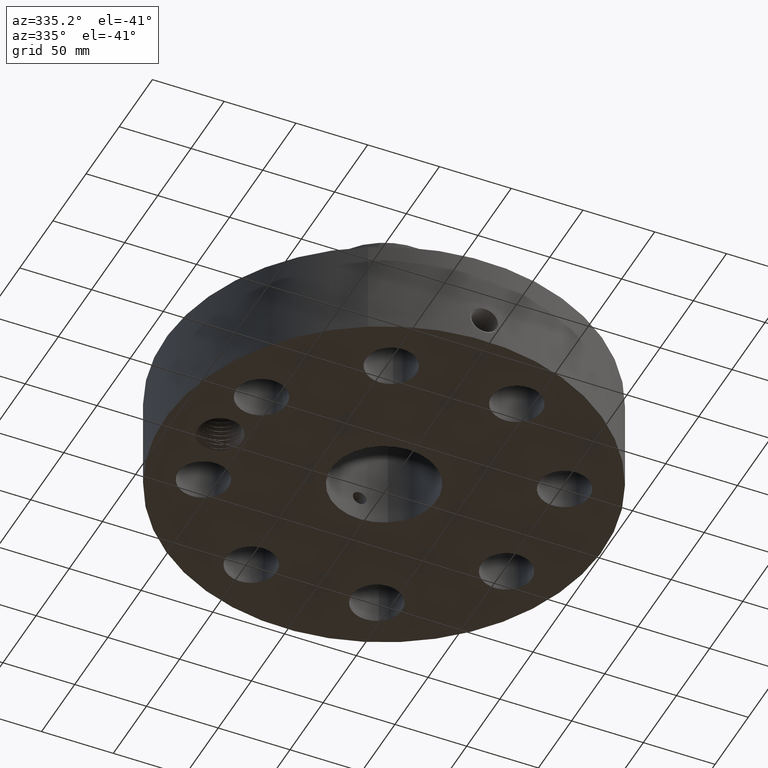
[diagram: clean part render]
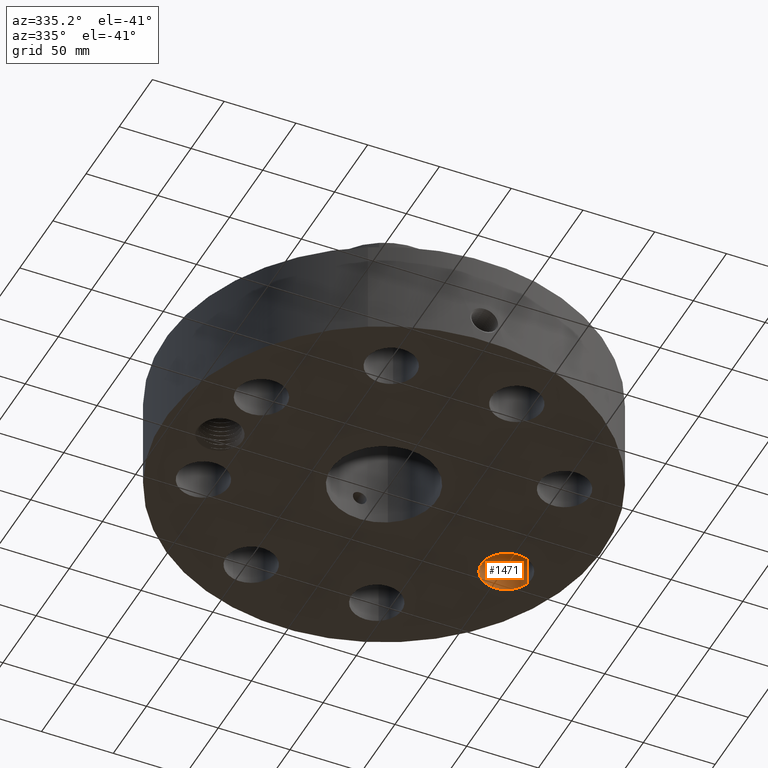
[diagram: same view with one face highlighted and labeled with its STEP entity id]
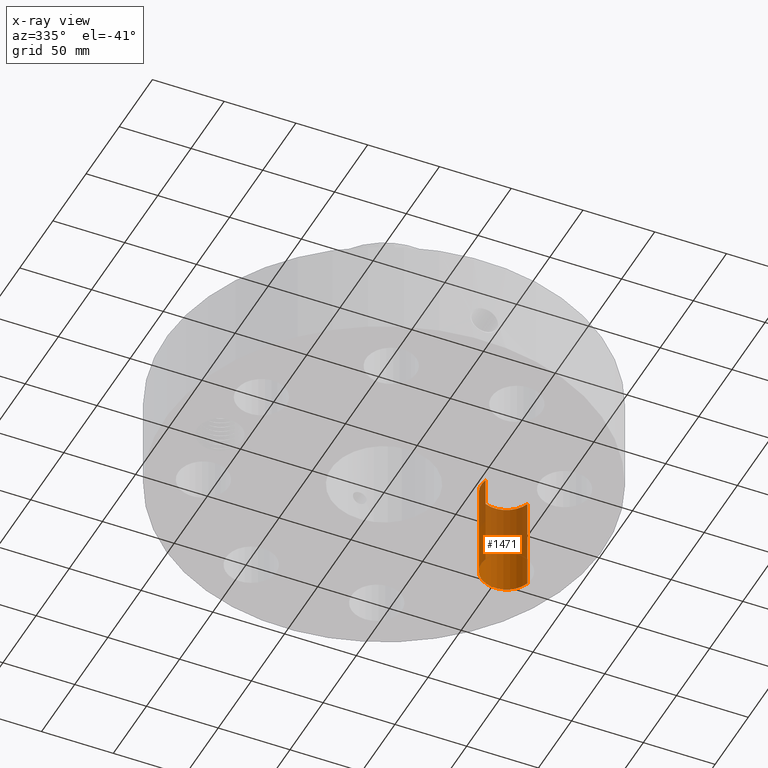
[diagram: x-ray of the same camera — body ghosted, the highlighted face saturated]
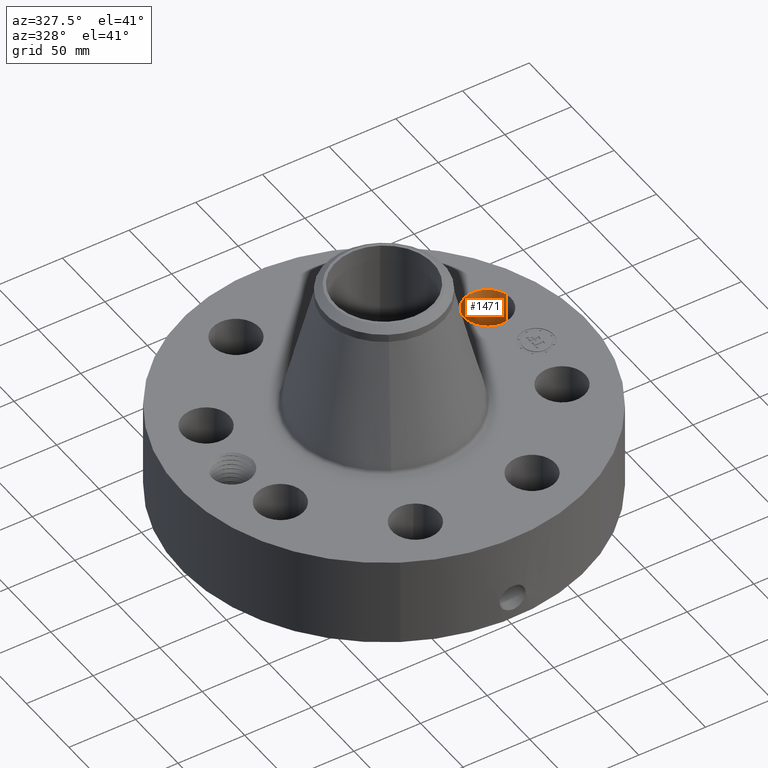
[diagram: same view with one face highlighted and labeled with its STEP entity id]
A machine part, auxiliary view. The second image highlights one B-rep face of the part: STEP entity #1471.
The next image is the same camera in x-ray: the body ghosted, the highlighted face saturated — about 51% of this face is hidden behind the body in this view.
A second angle (auxiliary view) of the same face is appended — the face is thin or edge-on in the first view.
In plain terms, the highlighted cylindrical surface (edge-blend (fillet) strip) has radius 17.526 mm, axis along (0, 0, -1).
Its self-contained STEP definition (entity closure, byte-faithful):
#372=AXIS2_PLACEMENT_3D('Circle Axis2P3D',#370,#371,$) ;
#702=AXIS2_PLACEMENT_3D('Circle Axis2P3D',#700,#701,$) ;
#1453=AXIS2_PLACEMENT_3D('Cylinder Axis2P3D',#1450,#1451,#1452) ;
#370=CARTESIAN_POINT('Axis2P3D Location',(4.15745789632,1.72207544565,0.250000000001)) ;
#374=CARTESIAN_POINT('Vertex',(3.49536865163,1.52781316916,0.250000000001)) ;
#376=CARTESIAN_POINT('Vertex',(4.81954714101,1.91633772214,0.250000000001)) ;
#695=CARTESIAN_POINT('Vertex',(4.81954714101,1.91633772214,2.87000000001)) ;
#697=CARTESIAN_POINT('Vertex',(3.49536865163,1.52781316916,2.87000000001)) ;
#700=CARTESIAN_POINT('Axis2P3D Location',(4.15745789632,1.72207544565,2.87000000001)) ;
#1450=CARTESIAN_POINT('Axis2P3D Location',(4.15745789632,1.72207544565,2.86606299214)) ;
#1455=CARTESIAN_POINT('Line Origine',(3.49536865163,1.52781316916,1.56000000001)) ;
#1460=CARTESIAN_POINT('Line Origine',(4.81954714101,1.91633772214,1.56000000001)) ;
#371=DIRECTION('Axis2P3D Direction',(0.,0.,-0.0393700787402)) ;
#701=DIRECTION('Axis2P3D Direction',(0.,0.,-0.0393700787402)) ;
#1451=DIRECTION('Axis2P3D Direction',(0.,0.,-0.0393700787402)) ;
#1452=DIRECTION('Axis2P3D XDirection',(0.0377775444876,0.0110842335096,0.)) ;
#1456=DIRECTION('Vector Direction',(0.,0.,-0.0393700787402)) ;
#1461=DIRECTION('Vector Direction',(0.,0.,-0.0393700787402)) ;
#1457=VECTOR('Line Direction',#1456,0.0393700787402) ;
#1462=VECTOR('Line Direction',#1461,0.0393700787402) ;
#1466=ORIENTED_EDGE('',*,*,#1459,.F.) ;
#1467=ORIENTED_EDGE('',*,*,#378,.T.) ;
#1468=ORIENTED_EDGE('',*,*,#1464,.T.) ;
#1469=ORIENTED_EDGE('',*,*,#704,.F.) ;
#1471=ADVANCED_FACE('PartBody',(#1470),#1454,.F.) ;
#373=CIRCLE('generated circle',#372,0.690000000003) ;
#703=CIRCLE('generated circle',#702,0.690000000003) ;
#1454=CYLINDRICAL_SURFACE('generated cylinder',#1453,0.690000000003) ;
#378=EDGE_CURVE('',#375,#377,#373,.T.) ;
#704=EDGE_CURVE('',#698,#696,#703,.T.) ;
#1459=EDGE_CURVE('',#375,#698,#1458,.F.) ;
#1464=EDGE_CURVE('',#377,#696,#1463,.F.) ;
#1465=EDGE_LOOP('',(#1466,#1467,#1468,#1469)) ;
#1470=FACE_OUTER_BOUND('',#1465,.T.) ;
#1458=LINE('Line',#1455,#1457) ;
#1463=LINE('Line',#1460,#1462) ;
#375=VERTEX_POINT('',#374) ;
#377=VERTEX_POINT('',#376) ;
#696=VERTEX_POINT('',#695) ;
#698=VERTEX_POINT('',#697) ;